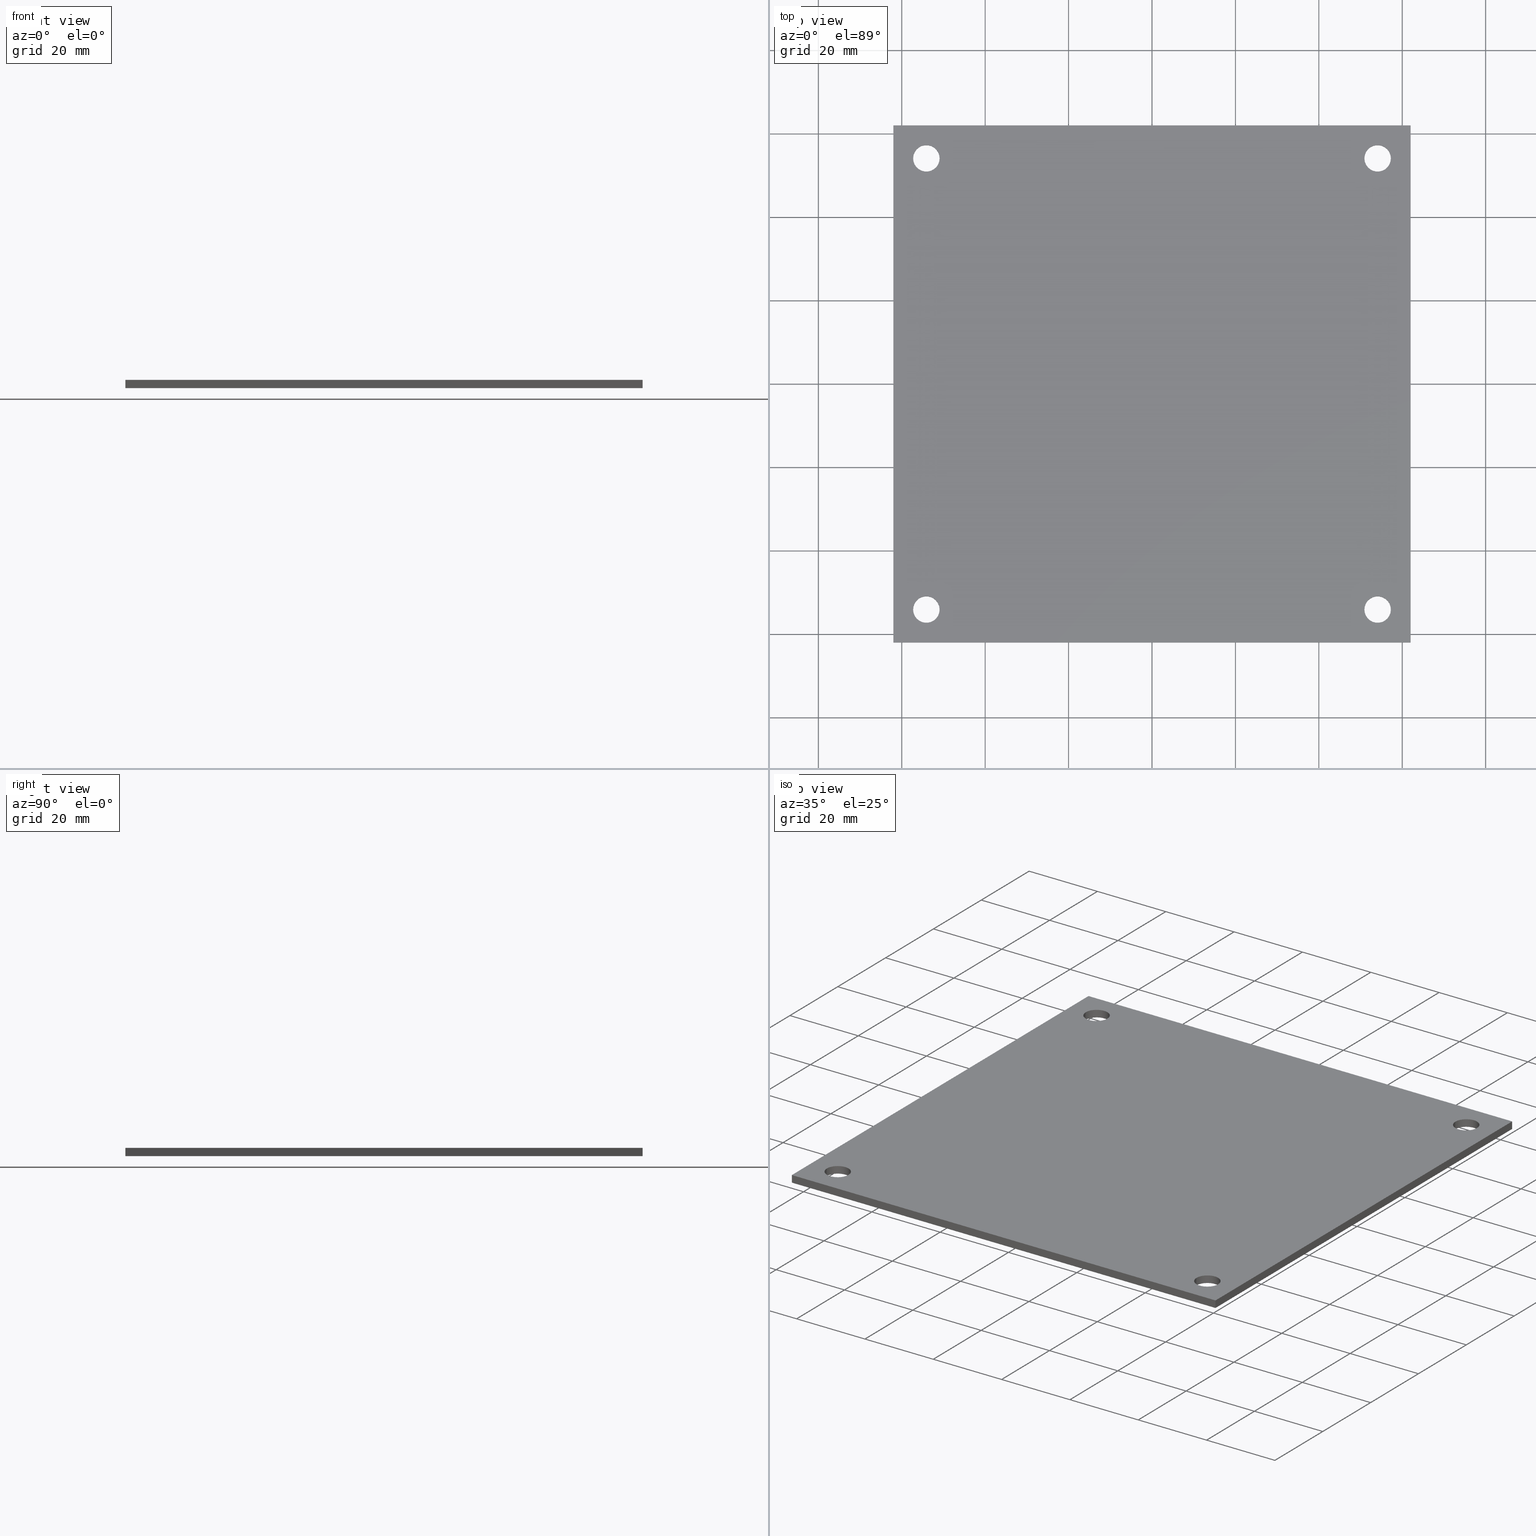
[diagram: canonical four-view strip — front | top / right | iso, engineering-drawing reading convention]
A machine part, canonical four-view strip (front | top / right | iso — engineering-drawing reading convention). The complete STEP part file that produces these views, byte-faithful:
ISO-10303-21;
HEADER;
FILE_DESCRIPTION (( 'STEP AP214' ),
    '1' );
FILE_NAME ('FIBOX_ABP66.STEP',
    '2010-03-08T07:47:10',
    ( 'KennethW' ),
    ( 'FIBOX' ),
    'SwSTEP 2.0',
    'SolidWorks 2009',
    '' );
FILE_SCHEMA (( 'AUTOMOTIVE_DESIGN' ));
ENDSEC;

DATA;
#1 = ORIENTED_EDGE ( 'NONE', *, *, #47, .T. ) ;
#2 = EDGE_LOOP ( 'NONE', ( #1, #31, #10, #39 ) ) ;
#3 = VERTEX_POINT ( 'NONE', #182 ) ;
#4 = VERTEX_POINT ( 'NONE', #175 ) ;
#5 = ORIENTED_EDGE ( 'NONE', *, *, #18, .F. ) ;
#6 = EDGE_CURVE ( 'NONE', #4, #12, #170, .T. ) ;
#7 = VERTEX_POINT ( 'NONE', #165 ) ;
#8 = VERTEX_POINT ( 'NONE', #164 ) ;
#9 = EDGE_CURVE ( 'NONE', #7, #14, #196, .T. ) ;
#10 = ORIENTED_EDGE ( 'NONE', *, *, #9, .F. ) ;
#11 = ORIENTED_EDGE ( 'NONE', *, *, #29, .T. ) ;
#12 = VERTEX_POINT ( 'NONE', #192 ) ;
#13 = EDGE_CURVE ( 'NONE', #61, #8, #190, .T. ) ;
#14 = VERTEX_POINT ( 'NONE', #198 ) ;
#15 = UNCERTAINTY_MEASURE_WITH_UNIT (LENGTH_MEASURE( 1.000000000000000100E-005 ), #366, 'distance_accuracy_value', 'NONE');
#16 =( NAMED_UNIT ( * ) SI_UNIT ( $, .STERADIAN. ) SOLID_ANGLE_UNIT ( ) );
#17 = ORIENTED_EDGE ( 'NONE', *, *, #13, .T. ) ;
#18 = EDGE_CURVE ( 'NONE', #61, #4, #204, .T. ) ;
#19 = VERTEX_POINT ( 'NONE', #220 ) ;
#20 = EDGE_CURVE ( 'NONE', #41, #7, #219, .T. ) ;
#21 = ADVANCED_FACE ( 'NONE', ( #240 ), #275, .F. ) ;
#22 = EDGE_LOOP ( 'NONE', ( #23, #49, #27, #46 ) ) ;
#23 = ORIENTED_EDGE ( 'NONE', *, *, #24, .T. ) ;
#24 = EDGE_CURVE ( 'NONE', #19, #3, #201, .T. ) ;
#25 = VERTEX_POINT ( 'NONE', #274 ) ;
#26 = EDGE_CURVE ( 'NONE', #3, #43, #280, .T. ) ;
#27 = ORIENTED_EDGE ( 'NONE', *, *, #28, .F. ) ;
#28 = EDGE_CURVE ( 'NONE', #59, #43, #276, .T. ) ;
#29 = EDGE_CURVE ( 'NONE', #8, #12, #217, .T. ) ;
#30 = ADVANCED_FACE ( 'NONE', ( #213 ), #269, .F. ) ;
#31 = ORIENTED_EDGE ( 'NONE', *, *, #32, .T. ) ;
#32 = EDGE_CURVE ( 'NONE', #25, #14, #263, .T. ) ;
#33 = MANIFOLD_SOLID_BREP ( 'NONE', #117 ) ;
#34 = ADVANCED_FACE ( 'NONE', ( #225 ), #224, .F. ) ;
#35 = EDGE_LOOP ( 'NONE', ( #36, #112, #109, #51 ) ) ;
#36 = ORIENTED_EDGE ( 'NONE', *, *, #37, .T. ) ;
#37 = EDGE_CURVE ( 'NONE', #38, #111, #223, .T. ) ;
#38 = VERTEX_POINT ( 'NONE', #252 ) ;
#39 = ORIENTED_EDGE ( 'NONE', *, *, #20, .F. ) ;
#40 = EDGE_LOOP ( 'NONE', ( #108, #78, #75, #84 ) ) ;
#41 = VERTEX_POINT ( 'NONE', #251 ) ;
#42 = EDGE_CURVE ( 'NONE', #19, #59, #250, .T. ) ;
#43 = VERTEX_POINT ( 'NONE', #246 ) ;
#44 = ORIENTED_EDGE ( 'NONE', *, *, #45, .F. ) ;
#45 = EDGE_CURVE ( 'NONE', #3, #19, #244, .T. ) ;
#46 = ORIENTED_EDGE ( 'NONE', *, *, #42, .F. ) ;
#47 = EDGE_CURVE ( 'NONE', #41, #25, #314, .T. ) ;
#48 = ORIENTED_EDGE ( 'NONE', *, *, #6, .F. ) ;
#49 = ORIENTED_EDGE ( 'NONE', *, *, #26, .T. ) ;
#50 = EDGE_CURVE ( 'NONE', #110, #114, #320, .T. ) ;
#51 = ORIENTED_EDGE ( 'NONE', *, *, #52, .F. ) ;
#52 = EDGE_CURVE ( 'NONE', #38, #110, #326, .T. ) ;
#53 = ADVANCED_FACE ( 'NONE', ( #324 ), #323, .F. ) ;
#54 = EDGE_LOOP ( 'NONE', ( #17, #11, #48, #5 ) ) ;
#55 = ORIENTED_EDGE ( 'NONE', *, *, #13, .F. ) ;
#56 = ORIENTED_EDGE ( 'NONE', *, *, #63, .F. ) ;
#57 = EDGE_LOOP ( 'NONE', ( #55, #56 ) ) ;
#58 = EDGE_LOOP ( 'NONE', ( #60, #44 ) ) ;
#59 = VERTEX_POINT ( 'NONE', #313 ) ;
#60 = ORIENTED_EDGE ( 'NONE', *, *, #24, .F. ) ;
#61 = VERTEX_POINT ( 'NONE', #312 ) ;
#62 = ADVANCED_FACE ( 'NONE', ( #311, #308, #307, #306, #305 ), #303, .T. ) ;
#63 = EDGE_CURVE ( 'NONE', #8, #61, #296, .T. ) ;
#64 = EDGE_LOOP ( 'NONE', ( #124, #145, #133, #136 ) ) ;
#65 = ORIENTED_EDGE ( 'NONE', *, *, #9, .T. ) ;
#66 = EDGE_LOOP ( 'NONE', ( #65, #132 ) ) ;
#67 = EDGE_CURVE ( 'NONE', #103, #107, #297, .T. ) ;
#68 = VERTEX_POINT ( 'NONE', #288 ) ;
#69 = ORIENTED_EDGE ( 'NONE', *, *, #70, .T. ) ;
#70 = EDGE_CURVE ( 'NONE', #43, #59, #287, .T. ) ;
#71 = VERTEX_POINT ( 'NONE', #282 ) ;
#72 = EDGE_CURVE ( 'NONE', #83, #77, #185, .T. ) ;
#73 = EDGE_CURVE ( 'NONE', #12, #4, #359, .T. ) ;
#74 = ORIENTED_EDGE ( 'NONE', *, *, #28, .T. ) ;
#75 = ORIENTED_EDGE ( 'NONE', *, *, #76, .T. ) ;
#76 = EDGE_CURVE ( 'NONE', #68, #71, #331, .T. ) ;
#77 = VERTEX_POINT ( 'NONE', #363 ) ;
#78 = ORIENTED_EDGE ( 'NONE', *, *, #93, .T. ) ;
#79 = EDGE_CURVE ( 'NONE', #25, #41, #333, .T. ) ;
#80 = ORIENTED_EDGE ( 'NONE', *, *, #47, .F. ) ;
#81 = ORIENTED_EDGE ( 'NONE', *, *, #79, .F. ) ;
#82 = EDGE_LOOP ( 'NONE', ( #80, #81 ) ) ;
#83 = VERTEX_POINT ( 'NONE', #338 ) ;
#84 = ORIENTED_EDGE ( 'NONE', *, *, #85, .T. ) ;
#85 = EDGE_CURVE ( 'NONE', #71, #83, #337, .T. ) ;
#86 = EDGE_LOOP ( 'NONE', ( #74, #69 ) ) ;
#87 = EDGE_LOOP ( 'NONE', ( #98, #99 ) ) ;
#88 = EDGE_LOOP ( 'NONE', ( #94, #95 ) ) ;
#89 = ORIENTED_EDGE ( 'NONE', *, *, #90, .F. ) ;
#90 = EDGE_CURVE ( 'NONE', #107, #106, #481, .T. ) ;
#91 = ORIENTED_EDGE ( 'NONE', *, *, #67, .F. ) ;
#92 = EDGE_LOOP ( 'NONE', ( #100, #104, #89, #91 ) ) ;
#93 = EDGE_CURVE ( 'NONE', #77, #68, #477, .T. ) ;
#94 = ORIENTED_EDGE ( 'NONE', *, *, #37, .F. ) ;
#95 = ORIENTED_EDGE ( 'NONE', *, *, #96, .F. ) ;
#96 = EDGE_CURVE ( 'NONE', #111, #38, #473, .T. ) ;
#97 = ADVANCED_FACE ( 'NONE', ( #468, #467, #466, #465, #464 ), #463, .F. ) ;
#98 = ORIENTED_EDGE ( 'NONE', *, *, #6, .T. ) ;
#99 = ORIENTED_EDGE ( 'NONE', *, *, #73, .T. ) ;
#100 = ORIENTED_EDGE ( 'NONE', *, *, #101, .F. ) ;
#101 = EDGE_CURVE ( 'NONE', #102, #103, #461, .T. ) ;
#102 = VERTEX_POINT ( 'NONE', #454 ) ;
#103 = VERTEX_POINT ( 'NONE', #453 ) ;
#104 = ORIENTED_EDGE ( 'NONE', *, *, #105, .F. ) ;
#105 = EDGE_CURVE ( 'NONE', #106, #102, #452, .T. ) ;
#106 = VERTEX_POINT ( 'NONE', #448 ) ;
#107 = VERTEX_POINT ( 'NONE', #358 ) ;
#108 = ORIENTED_EDGE ( 'NONE', *, *, #72, .T. ) ;
#109 = ORIENTED_EDGE ( 'NONE', *, *, #50, .F. ) ;
#110 = VERTEX_POINT ( 'NONE', #357 ) ;
#111 = VERTEX_POINT ( 'NONE', #356 ) ;
#112 = ORIENTED_EDGE ( 'NONE', *, *, #113, .T. ) ;
#113 = EDGE_CURVE ( 'NONE', #111, #114, #355, .T. ) ;
#114 = VERTEX_POINT ( 'NONE', #351 ) ;
#115 = ORIENTED_EDGE ( 'NONE', *, *, #52, .T. ) ;
#116 = ORIENTED_EDGE ( 'NONE', *, *, #134, .F. ) ;
#117 = CLOSED_SHELL ( 'NONE', ( #34, #53, #30, #21, #62, #97, #128, #135, #176, #156, #143, #171, #121, #181 ) ) ;
#118 = ORIENTED_EDGE ( 'NONE', *, *, #79, .T. ) ;
#119 = ORIENTED_EDGE ( 'NONE', *, *, #20, .T. ) ;
#120 = ORIENTED_EDGE ( 'NONE', *, *, #126, .F. ) ;
#121 = ADVANCED_FACE ( 'NONE', ( #350 ), #349, .F. ) ;
#122 = EDGE_LOOP ( 'NONE', ( #140, #147, #160, #178 ) ) ;
#123 = EDGE_CURVE ( 'NONE', #77, #103, #344, .T. ) ;
#124 = ORIENTED_EDGE ( 'NONE', *, *, #101, .T. ) ;
#125 = ORIENTED_EDGE ( 'NONE', *, *, #134, .T. ) ;
#126 = EDGE_CURVE ( 'NONE', #14, #7, #446, .T. ) ;
#127 = ORIENTED_EDGE ( 'NONE', *, *, #50, .T. ) ;
#128 = ADVANCED_FACE ( 'NONE', ( #441 ), #440, .F. ) ;
#129 = ORIENTED_EDGE ( 'NONE', *, *, #197, .F. ) ;
#130 = ORIENTED_EDGE ( 'NONE', *, *, #67, .T. ) ;
#131 = EDGE_LOOP ( 'NONE', ( #130, #129, #173, #180 ) ) ;
#132 = ORIENTED_EDGE ( 'NONE', *, *, #126, .T. ) ;
#133 = ORIENTED_EDGE ( 'NONE', *, *, #72, .F. ) ;
#134 = EDGE_CURVE ( 'NONE', #114, #110, #438, .T. ) ;
#135 = ADVANCED_FACE ( 'NONE', ( #430 ), #429, .F. ) ;
#136 = ORIENTED_EDGE ( 'NONE', *, *, #172, .T. ) ;
#137 = ORIENTED_EDGE ( 'NONE', *, *, #172, .F. ) ;
#138 = ORIENTED_EDGE ( 'NONE', *, *, #85, .F. ) ;
#139 = ORIENTED_EDGE ( 'NONE', *, *, #153, .T. ) ;
#140 = ORIENTED_EDGE ( 'NONE', *, *, #29, .F. ) ;
#141 = ORIENTED_EDGE ( 'NONE', *, *, #26, .F. ) ;
#142 = ORIENTED_EDGE ( 'NONE', *, *, #45, .T. ) ;
#143 = ADVANCED_FACE ( 'NONE', ( #427 ), #423, .F. ) ;
#144 = ORIENTED_EDGE ( 'NONE', *, *, #42, .T. ) ;
#145 = ORIENTED_EDGE ( 'NONE', *, *, #123, .F. ) ;
#146 = EDGE_LOOP ( 'NONE', ( #141, #142, #144, #174 ) ) ;
#147 = ORIENTED_EDGE ( 'NONE', *, *, #63, .T. ) ;
#148 = ORIENTED_EDGE ( 'NONE', *, *, #96, .T. ) ;
#149 = DIRECTION ( 'NONE',  ( 1.000000000000000000, 0.0000000000000000000, 0.0000000000000000000 ) ) ;
#150 = EDGE_LOOP ( 'NONE', ( #151, #152, #154, #155 ) ) ;
#151 = ORIENTED_EDGE ( 'NONE', *, *, #90, .T. ) ;
#152 = ORIENTED_EDGE ( 'NONE', *, *, #153, .F. ) ;
#153 = EDGE_CURVE ( 'NONE', #71, #106, #418, .T. ) ;
#154 = ORIENTED_EDGE ( 'NONE', *, *, #76, .F. ) ;
#155 = ORIENTED_EDGE ( 'NONE', *, *, #197, .T. ) ;
#156 = ADVANCED_FACE ( 'NONE', ( #414 ), #413, .F. ) ;
#157 = EDGE_LOOP ( 'NONE', ( #158, #137, #138, #139 ) ) ;
#158 = ORIENTED_EDGE ( 'NONE', *, *, #105, .T. ) ;
#159 = EDGE_LOOP ( 'NONE', ( #161, #148, #115, #116 ) ) ;
#160 = ORIENTED_EDGE ( 'NONE', *, *, #18, .T. ) ;
#161 = ORIENTED_EDGE ( 'NONE', *, *, #113, .F. ) ;
#162 = ORIENTED_EDGE ( 'NONE', *, *, #32, .F. ) ;
#163 = CARTESIAN_POINT ( 'NONE',  ( -54.09999999999999400, 54.10000000000000900, 0.0000000000000000000 ) ) ;
#164 = CARTESIAN_POINT ( 'NONE',  ( -50.92499999999999700, -54.10000000000000900, 2.000000000000000000 ) ) ;
#165 = CARTESIAN_POINT ( 'NONE',  ( -57.27499999999999100, 54.10000000000000900, 0.0000000000000000000 ) ) ;
#166 = DIRECTION ( 'NONE',  ( 1.000000000000000000, 0.0000000000000000000, 0.0000000000000000000 ) ) ;
#167 = DIRECTION ( 'NONE',  ( 0.0000000000000000000, 0.0000000000000000000, 1.000000000000000000 ) ) ;
#168 = CARTESIAN_POINT ( 'NONE',  ( -54.09999999999999400, -54.10000000000000900, 0.0000000000000000000 ) ) ;
#169 = AXIS2_PLACEMENT_3D ( 'NONE', #168, #167, #166 ) ;
#170 = CIRCLE ( 'NONE', #169, 3.174999999999997200 ) ;
#171 = ADVANCED_FACE ( 'NONE', ( #408 ), #407, .F. ) ;
#172 = EDGE_CURVE ( 'NONE', #83, #102, #402, .T. ) ;
#173 = ORIENTED_EDGE ( 'NONE', *, *, #93, .F. ) ;
#174 = ORIENTED_EDGE ( 'NONE', *, *, #70, .F. ) ;
#175 = CARTESIAN_POINT ( 'NONE',  ( -57.27499999999999100, -54.10000000000000900, 0.0000000000000000000 ) ) ;
#176 = ADVANCED_FACE ( 'NONE', ( #398 ), #397, .F. ) ;
#177 = EDGE_LOOP ( 'NONE', ( #162, #118, #119, #120 ) ) ;
#178 = ORIENTED_EDGE ( 'NONE', *, *, #73, .F. ) ;
#179 = EDGE_LOOP ( 'NONE', ( #127, #125 ) ) ;
#180 = ORIENTED_EDGE ( 'NONE', *, *, #123, .T. ) ;
#181 = ADVANCED_FACE ( 'NONE', ( #392 ), #391, .F. ) ;
#182 = CARTESIAN_POINT ( 'NONE',  ( 57.27500000000000600, 54.10000000000000900, 2.000000000000000000 ) ) ;
#183 = DIRECTION ( 'NONE',  ( -1.119176436114069100E-016, -1.000000000000000000, 0.0000000000000000000 ) ) ;
#184 = CARTESIAN_POINT ( 'NONE',  ( -61.99999999999999300, 62.00000000000000700, 2.000000000000000000 ) ) ;
#185 = LINE ( 'NONE', #184, #245 ) ;
#186 = DIRECTION ( 'NONE',  ( 1.000000000000000000, 0.0000000000000000000, 0.0000000000000000000 ) ) ;
#187 = DIRECTION ( 'NONE',  ( 0.0000000000000000000, 0.0000000000000000000, 1.000000000000000000 ) ) ;
#188 = CARTESIAN_POINT ( 'NONE',  ( -54.09999999999999400, -54.10000000000000900, 2.000000000000000000 ) ) ;
#189 = AXIS2_PLACEMENT_3D ( 'NONE', #188, #187, #186 ) ;
#190 = CIRCLE ( 'NONE', #189, 3.174999999999997200 ) ;
#191 =( GEOMETRIC_REPRESENTATION_CONTEXT ( 3 ) GLOBAL_UNCERTAINTY_ASSIGNED_CONTEXT ( ( #15 ) ) GLOBAL_UNIT_ASSIGNED_CONTEXT ( ( #366, #365, #16 ) ) REPRESENTATION_CONTEXT ( 'NONE', 'WORKASPACE' ) );
#192 = CARTESIAN_POINT ( 'NONE',  ( -50.92499999999999700, -54.10000000000000900, 0.0000000000000000000 ) ) ;
#193 = DIRECTION ( 'NONE',  ( 1.000000000000000000, 0.0000000000000000000, 0.0000000000000000000 ) ) ;
#194 = DIRECTION ( 'NONE',  ( 0.0000000000000000000, 0.0000000000000000000, 1.000000000000000000 ) ) ;
#195 = AXIS2_PLACEMENT_3D ( 'NONE', #163, #194, #193 ) ;
#196 = CIRCLE ( 'NONE', #195, 3.174999999999997200 ) ;
#197 = EDGE_CURVE ( 'NONE', #68, #107, #386, .T. ) ;
#198 = CARTESIAN_POINT ( 'NONE',  ( -50.92499999999999700, 54.10000000000000900, 0.0000000000000000000 ) ) ;
#199 = AXIS2_PLACEMENT_3D ( 'NONE', #205, #203, #202 ) ;
#200 = DIRECTION ( 'NONE',  ( -0.0000000000000000000, -0.0000000000000000000, -1.000000000000000000 ) ) ;
#201 = CIRCLE ( 'NONE', #273, 3.174999999999997200 ) ;
#202 = DIRECTION ( 'NONE',  ( -1.000000000000000000, 0.0000000000000000000, 0.0000000000000000000 ) ) ;
#203 = DIRECTION ( 'NONE',  ( -0.0000000000000000000, -0.0000000000000000000, -1.000000000000000000 ) ) ;
#204 = LINE ( 'NONE', #221, #211 ) ;
#205 = CARTESIAN_POINT ( 'NONE',  ( 54.10000000000000900, 54.10000000000000900, 2.000000000000000000 ) ) ;
#206 = DIRECTION ( 'NONE',  ( 1.000000000000000000, 0.0000000000000000000, 0.0000000000000000000 ) ) ;
#207 = DIRECTION ( 'NONE',  ( 0.0000000000000000000, 0.0000000000000000000, 1.000000000000000000 ) ) ;
#208 = CARTESIAN_POINT ( 'NONE',  ( 54.10000000000000900, 54.10000000000000900, 0.0000000000000000000 ) ) ;
#209 = AXIS2_PLACEMENT_3D ( 'NONE', #208, #207, #206 ) ;
#210 = VECTOR ( 'NONE', #212, 1000.000000000000000 ) ;
#211 = VECTOR ( 'NONE', #200, 1000.000000000000000 ) ;
#212 = DIRECTION ( 'NONE',  ( -0.0000000000000000000, -0.0000000000000000000, -1.000000000000000000 ) ) ;
#213 = FACE_OUTER_BOUND ( 'NONE', #2, .T. ) ;
#214 = DIRECTION ( 'NONE',  ( -0.0000000000000000000, -0.0000000000000000000, -1.000000000000000000 ) ) ;
#215 = VECTOR ( 'NONE', #214, 1000.000000000000000 ) ;
#216 = CARTESIAN_POINT ( 'NONE',  ( -50.92499999999999700, -54.10000000000000900, 2.000000000000000000 ) ) ;
#217 = LINE ( 'NONE', #216, #215 ) ;
#218 = CARTESIAN_POINT ( 'NONE',  ( -57.27499999999999100, 54.10000000000000900, 2.000000000000000000 ) ) ;
#219 = LINE ( 'NONE', #218, #210 ) ;
#220 = CARTESIAN_POINT ( 'NONE',  ( 50.92500000000001100, 54.10000000000000900, 2.000000000000000000 ) ) ;
#221 = CARTESIAN_POINT ( 'NONE',  ( -57.27499999999999100, -54.10000000000000900, 2.000000000000000000 ) ) ;
#222 = AXIS2_PLACEMENT_3D ( 'NONE', #259, #258, #257 ) ;
#223 = CIRCLE ( 'NONE', #256, 3.174999999999997200 ) ;
#224 = CYLINDRICAL_SURFACE ( 'NONE', #222, 3.174999999999997200 ) ;
#225 = FACE_OUTER_BOUND ( 'NONE', #35, .T. ) ;
#226 =( GEOMETRIC_REPRESENTATION_CONTEXT ( 3 ) GLOBAL_UNCERTAINTY_ASSIGNED_CONTEXT ( ( #227 ) ) GLOBAL_UNIT_ASSIGNED_CONTEXT ( ( #230, #229, #228 ) ) REPRESENTATION_CONTEXT ( 'NONE', 'WORKASPACE' ) );
#227 = UNCERTAINTY_MEASURE_WITH_UNIT (LENGTH_MEASURE( 1.000000000000000100E-005 ), #230, 'distance_accuracy_value', 'NONE');
#228 =( NAMED_UNIT ( * ) SI_UNIT ( $, .STERADIAN. ) SOLID_ANGLE_UNIT ( ) );
#229 =( NAMED_UNIT ( * ) PLANE_ANGLE_UNIT ( ) SI_UNIT ( $, .RADIAN. ) );
#230 =( LENGTH_UNIT ( ) NAMED_UNIT ( * ) SI_UNIT ( .MILLI., .METRE. ) );
#231 = MECHANICAL_DESIGN_GEOMETRIC_PRESENTATION_REPRESENTATION (  '', ( #233 ), #226 ) ;
#232 = PRESENTATION_LAYER_ASSIGNMENT (  '', '', ( #233 ) ) ;
#233 = STYLED_ITEM ( 'NONE', ( #234 ), #33 ) ;
#234 = PRESENTATION_STYLE_ASSIGNMENT (( #235 ) ) ;
#235 = SURFACE_STYLE_USAGE ( .BOTH. , #236 ) ;
#236 = SURFACE_SIDE_STYLE ('',( #237 ) ) ;
#237 = SURFACE_STYLE_FILL_AREA ( #238 ) ;
#238 = FILL_AREA_STYLE ('',( #264 ) ) ;
#239 = COLOUR_RGB ( '',0.7529411764705882200, 0.7529411764705882200, 0.7529411764705882200 ) ;
#240 = FACE_OUTER_BOUND ( 'NONE', #22, .T. ) ;
#241 = DIRECTION ( 'NONE',  ( 0.0000000000000000000, 0.0000000000000000000, 1.000000000000000000 ) ) ;
#242 = CARTESIAN_POINT ( 'NONE',  ( 54.10000000000000900, 54.10000000000000900, 2.000000000000000000 ) ) ;
#243 = AXIS2_PLACEMENT_3D ( 'NONE', #242, #241, #149 ) ;
#244 = CIRCLE ( 'NONE', #243, 3.174999999999997200 ) ;
#245 = VECTOR ( 'NONE', #183, 1000.000000000000000 ) ;
#246 = CARTESIAN_POINT ( 'NONE',  ( 57.27500000000000600, 54.10000000000000900, 0.0000000000000000000 ) ) ;
#247 = DIRECTION ( 'NONE',  ( -0.0000000000000000000, -0.0000000000000000000, -1.000000000000000000 ) ) ;
#248 = VECTOR ( 'NONE', #247, 1000.000000000000000 ) ;
#249 = CARTESIAN_POINT ( 'NONE',  ( 50.92500000000001100, 54.10000000000000900, 2.000000000000000000 ) ) ;
#250 = LINE ( 'NONE', #249, #248 ) ;
#251 = CARTESIAN_POINT ( 'NONE',  ( -57.27499999999999100, 54.10000000000000900, 2.000000000000000000 ) ) ;
#252 = CARTESIAN_POINT ( 'NONE',  ( 50.92500000000001800, -54.10000000000000900, 2.000000000000000000 ) ) ;
#253 = DIRECTION ( 'NONE',  ( 1.000000000000000000, 0.0000000000000000000, 0.0000000000000000000 ) ) ;
#254 = DIRECTION ( 'NONE',  ( 0.0000000000000000000, 0.0000000000000000000, 1.000000000000000000 ) ) ;
#255 = CARTESIAN_POINT ( 'NONE',  ( 54.10000000000001600, -54.10000000000000900, 2.000000000000000000 ) ) ;
#256 = AXIS2_PLACEMENT_3D ( 'NONE', #255, #254, #253 ) ;
#257 = DIRECTION ( 'NONE',  ( -1.000000000000000000, 0.0000000000000000000, 0.0000000000000000000 ) ) ;
#258 = DIRECTION ( 'NONE',  ( -0.0000000000000000000, -0.0000000000000000000, -1.000000000000000000 ) ) ;
#259 = CARTESIAN_POINT ( 'NONE',  ( 54.10000000000001600, -54.10000000000000900, 2.000000000000000000 ) ) ;
#260 = DIRECTION ( 'NONE',  ( -0.0000000000000000000, -0.0000000000000000000, -1.000000000000000000 ) ) ;
#261 = VECTOR ( 'NONE', #260, 1000.000000000000000 ) ;
#262 = CARTESIAN_POINT ( 'NONE',  ( -50.92499999999999700, 54.10000000000000900, 2.000000000000000000 ) ) ;
#263 = LINE ( 'NONE', #262, #261 ) ;
#264 = FILL_AREA_STYLE_COLOUR ( '', #239 ) ;
#265 = DIRECTION ( 'NONE',  ( -1.000000000000000000, 0.0000000000000000000, 0.0000000000000000000 ) ) ;
#266 = DIRECTION ( 'NONE',  ( -0.0000000000000000000, -0.0000000000000000000, -1.000000000000000000 ) ) ;
#267 = CARTESIAN_POINT ( 'NONE',  ( -54.09999999999999400, 54.10000000000000900, 2.000000000000000000 ) ) ;
#268 = AXIS2_PLACEMENT_3D ( 'NONE', #267, #266, #265 ) ;
#269 = CYLINDRICAL_SURFACE ( 'NONE', #268, 3.174999999999997200 ) ;
#270 = DIRECTION ( 'NONE',  ( 1.000000000000000000, 0.0000000000000000000, 0.0000000000000000000 ) ) ;
#271 = DIRECTION ( 'NONE',  ( 0.0000000000000000000, 0.0000000000000000000, 1.000000000000000000 ) ) ;
#272 = CARTESIAN_POINT ( 'NONE',  ( 54.10000000000000900, 54.10000000000000900, 2.000000000000000000 ) ) ;
#273 = AXIS2_PLACEMENT_3D ( 'NONE', #272, #271, #270 ) ;
#274 = CARTESIAN_POINT ( 'NONE',  ( -50.92499999999999700, 54.10000000000000900, 2.000000000000000000 ) ) ;
#275 = CYLINDRICAL_SURFACE ( 'NONE', #199, 3.174999999999997200 ) ;
#276 = CIRCLE ( 'NONE', #209, 3.174999999999997200 ) ;
#277 = DIRECTION ( 'NONE',  ( -0.0000000000000000000, -0.0000000000000000000, -1.000000000000000000 ) ) ;
#278 = VECTOR ( 'NONE', #277, 1000.000000000000000 ) ;
#279 = CARTESIAN_POINT ( 'NONE',  ( 57.27500000000000600, 54.10000000000000900, 2.000000000000000000 ) ) ;
#280 = LINE ( 'NONE', #279, #278 ) ;
#281 = CARTESIAN_POINT ( 'NONE',  ( 50.92500000000001800, -54.10000000000000900, 2.000000000000000000 ) ) ;
#282 = CARTESIAN_POINT ( 'NONE',  ( 62.00000000000000000, 62.00000000000000000, 2.000000000000000000 ) ) ;
#283 = DIRECTION ( 'NONE',  ( 1.000000000000000000, 0.0000000000000000000, 0.0000000000000000000 ) ) ;
#284 = DIRECTION ( 'NONE',  ( 0.0000000000000000000, 0.0000000000000000000, 1.000000000000000000 ) ) ;
#285 = CARTESIAN_POINT ( 'NONE',  ( 54.10000000000000900, 54.10000000000000900, 0.0000000000000000000 ) ) ;
#286 = AXIS2_PLACEMENT_3D ( 'NONE', #285, #284, #283 ) ;
#287 = CIRCLE ( 'NONE', #286, 3.174999999999997200 ) ;
#288 = CARTESIAN_POINT ( 'NONE',  ( 62.00000000000000700, -61.99999999999999300, 2.000000000000000000 ) ) ;
#289 = DIRECTION ( 'NONE',  ( 1.000000000000000000, 0.0000000000000000000, 0.0000000000000000000 ) ) ;
#290 = VECTOR ( 'NONE', #289, 1000.000000000000000 ) ;
#291 = CARTESIAN_POINT ( 'NONE',  ( -62.00000000000000700, -61.99999999999999300, 0.0000000000000000000 ) ) ;
#292 = DIRECTION ( 'NONE',  ( 1.000000000000000000, 0.0000000000000000000, 0.0000000000000000000 ) ) ;
#293 = DIRECTION ( 'NONE',  ( 1.000000000000000000, 0.0000000000000000000, 0.0000000000000000000 ) ) ;
#294 = DIRECTION ( 'NONE',  ( 0.0000000000000000000, 0.0000000000000000000, 1.000000000000000000 ) ) ;
#295 = AXIS2_PLACEMENT_3D ( 'NONE', #301, #294, #293 ) ;
#296 = CIRCLE ( 'NONE', #295, 3.174999999999997200 ) ;
#297 = LINE ( 'NONE', #291, #290 ) ;
#298 = DIRECTION ( 'NONE',  ( 1.000000000000000000, 0.0000000000000000000, -0.0000000000000000000 ) ) ;
#299 = DIRECTION ( 'NONE',  ( 0.0000000000000000000, 0.0000000000000000000, 1.000000000000000000 ) ) ;
#300 = CARTESIAN_POINT ( 'NONE',  ( -61.99999999999999300, 62.00000000000000700, 2.000000000000000000 ) ) ;
#301 = CARTESIAN_POINT ( 'NONE',  ( -54.09999999999999400, -54.10000000000000900, 2.000000000000000000 ) ) ;
#302 = AXIS2_PLACEMENT_3D ( 'NONE', #300, #299, #298 ) ;
#303 = PLANE ( 'NONE',  #302 ) ;
#304 = CARTESIAN_POINT ( 'NONE',  ( -54.09999999999999400, 54.10000000000000900, 2.000000000000000000 ) ) ;
#305 = FACE_BOUND ( 'NONE', #88, .T. ) ;
#306 = FACE_BOUND ( 'NONE', #82, .T. ) ;
#307 = FACE_OUTER_BOUND ( 'NONE', #40, .T. ) ;
#308 = FACE_BOUND ( 'NONE', #58, .T. ) ;
#309 = DIRECTION ( 'NONE',  ( -1.000000000000000000, 0.0000000000000000000, 0.0000000000000000000 ) ) ;
#310 = AXIS2_PLACEMENT_3D ( 'NONE', #322, #321, #309 ) ;
#311 = FACE_BOUND ( 'NONE', #57, .T. ) ;
#312 = CARTESIAN_POINT ( 'NONE',  ( -57.27499999999999100, -54.10000000000000900, 2.000000000000000000 ) ) ;
#313 = CARTESIAN_POINT ( 'NONE',  ( 50.92500000000001100, 54.10000000000000900, 0.0000000000000000000 ) ) ;
#314 = CIRCLE ( 'NONE', #318, 3.174999999999997200 ) ;
#315 = DIRECTION ( 'NONE',  ( 0.0000000000000000000, 0.0000000000000000000, 1.000000000000000000 ) ) ;
#316 = DIRECTION ( 'NONE',  ( 1.000000000000000000, 0.0000000000000000000, 0.0000000000000000000 ) ) ;
#317 = DIRECTION ( 'NONE',  ( -0.0000000000000000000, -0.0000000000000000000, -1.000000000000000000 ) ) ;
#318 = AXIS2_PLACEMENT_3D ( 'NONE', #304, #328, #292 ) ;
#319 = AXIS2_PLACEMENT_3D ( 'NONE', #327, #315, #316 ) ;
#320 = CIRCLE ( 'NONE', #319, 3.174999999999997200 ) ;
#321 = DIRECTION ( 'NONE',  ( -0.0000000000000000000, -0.0000000000000000000, -1.000000000000000000 ) ) ;
#322 = CARTESIAN_POINT ( 'NONE',  ( -54.09999999999999400, -54.10000000000000900, 2.000000000000000000 ) ) ;
#323 = CYLINDRICAL_SURFACE ( 'NONE', #310, 3.174999999999997200 ) ;
#324 = FACE_OUTER_BOUND ( 'NONE', #54, .T. ) ;
#325 = VECTOR ( 'NONE', #317, 1000.000000000000000 ) ;
#326 = LINE ( 'NONE', #281, #325 ) ;
#327 = CARTESIAN_POINT ( 'NONE',  ( 54.10000000000001600, -54.10000000000000900, 0.0000000000000000000 ) ) ;
#328 = DIRECTION ( 'NONE',  ( 0.0000000000000000000, 0.0000000000000000000, 1.000000000000000000 ) ) ;
#329 = VECTOR ( 'NONE', #364, 1000.000000000000000 ) ;
#330 = CARTESIAN_POINT ( 'NONE',  ( 62.00000000000000000, 62.00000000000000000, 2.000000000000000000 ) ) ;
#331 = LINE ( 'NONE', #330, #329 ) ;
#332 = AXIS2_PLACEMENT_3D ( 'NONE', #341, #340, #339 ) ;
#333 = CIRCLE ( 'NONE', #332, 3.174999999999997200 ) ;
#334 = DIRECTION ( 'NONE',  ( 0.0000000000000000000, 0.0000000000000000000, 1.000000000000000000 ) ) ;
#335 = VECTOR ( 'NONE', #482, 1000.000000000000000 ) ;
#336 = CARTESIAN_POINT ( 'NONE',  ( -61.99999999999999300, 62.00000000000000700, 2.000000000000000000 ) ) ;
#337 = LINE ( 'NONE', #336, #335 ) ;
#338 = CARTESIAN_POINT ( 'NONE',  ( -61.99999999999999300, 62.00000000000000700, 2.000000000000000000 ) ) ;
#339 = DIRECTION ( 'NONE',  ( 1.000000000000000000, 0.0000000000000000000, 0.0000000000000000000 ) ) ;
#340 = DIRECTION ( 'NONE',  ( 0.0000000000000000000, 0.0000000000000000000, 1.000000000000000000 ) ) ;
#341 = CARTESIAN_POINT ( 'NONE',  ( -54.09999999999999400, 54.10000000000000900, 2.000000000000000000 ) ) ;
#342 = VECTOR ( 'NONE', #447, 1000.000000000000000 ) ;
#343 = CARTESIAN_POINT ( 'NONE',  ( -62.00000000000000700, -61.99999999999999300, 2.000000000000000000 ) ) ;
#344 = LINE ( 'NONE', #343, #342 ) ;
#345 = DIRECTION ( 'NONE',  ( -1.000000000000000000, 0.0000000000000000000, 0.0000000000000000000 ) ) ;
#346 = DIRECTION ( 'NONE',  ( -0.0000000000000000000, -0.0000000000000000000, -1.000000000000000000 ) ) ;
#347 = CARTESIAN_POINT ( 'NONE',  ( -54.09999999999999400, -54.10000000000000900, 2.000000000000000000 ) ) ;
#348 = AXIS2_PLACEMENT_3D ( 'NONE', #347, #346, #345 ) ;
#349 = CYLINDRICAL_SURFACE ( 'NONE', #348, 3.174999999999997200 ) ;
#350 = FACE_OUTER_BOUND ( 'NONE', #122, .T. ) ;
#351 = CARTESIAN_POINT ( 'NONE',  ( 57.27500000000001300, -54.10000000000000900, 0.0000000000000000000 ) ) ;
#352 = DIRECTION ( 'NONE',  ( -0.0000000000000000000, -0.0000000000000000000, -1.000000000000000000 ) ) ;
#353 = VECTOR ( 'NONE', #352, 1000.000000000000000 ) ;
#354 = CARTESIAN_POINT ( 'NONE',  ( 57.27500000000001300, -54.10000000000000900, 2.000000000000000000 ) ) ;
#355 = LINE ( 'NONE', #354, #353 ) ;
#356 = CARTESIAN_POINT ( 'NONE',  ( 57.27500000000001300, -54.10000000000000900, 2.000000000000000000 ) ) ;
#357 = CARTESIAN_POINT ( 'NONE',  ( 50.92500000000001800, -54.10000000000000900, 0.0000000000000000000 ) ) ;
#358 = CARTESIAN_POINT ( 'NONE',  ( 62.00000000000000700, -61.99999999999999300, 0.0000000000000000000 ) ) ;
#359 = CIRCLE ( 'NONE', #362, 3.174999999999997200 ) ;
#360 = DIRECTION ( 'NONE',  ( 1.000000000000000000, 0.0000000000000000000, 0.0000000000000000000 ) ) ;
#361 = CARTESIAN_POINT ( 'NONE',  ( -54.09999999999999400, -54.10000000000000900, 0.0000000000000000000 ) ) ;
#362 = AXIS2_PLACEMENT_3D ( 'NONE', #361, #334, #360 ) ;
#363 = CARTESIAN_POINT ( 'NONE',  ( -62.00000000000000700, -61.99999999999999300, 2.000000000000000000 ) ) ;
#364 = DIRECTION ( 'NONE',  ( -5.595882180570345400E-017, 1.000000000000000000, -0.0000000000000000000 ) ) ;
#365 =( NAMED_UNIT ( * ) PLANE_ANGLE_UNIT ( ) SI_UNIT ( $, .RADIAN. ) );
#366 =( LENGTH_UNIT ( ) NAMED_UNIT ( * ) SI_UNIT ( .MILLI., .METRE. ) );
#367 = MECHANICAL_DESIGN_GEOMETRIC_PRESENTATION_REPRESENTATION (  '', ( #369 ), #191 ) ;
#368 = PRESENTATION_LAYER_ASSIGNMENT (  '', '', ( #369 ) ) ;
#369 = STYLED_ITEM ( 'NONE', ( #370 ), #377 ) ;
#370 = PRESENTATION_STYLE_ASSIGNMENT (( #371 ) ) ;
#371 = SURFACE_STYLE_USAGE ( .BOTH. , #372 ) ;
#372 = SURFACE_SIDE_STYLE ('',( #373 ) ) ;
#373 = SURFACE_STYLE_FILL_AREA ( #374 ) ;
#374 = FILL_AREA_STYLE ('',( #375 ) ) ;
#375 = FILL_AREA_STYLE_COLOUR ( '', #376 ) ;
#376 = COLOUR_RGB ( '',0.7529411764705882200, 0.7529411764705882200, 0.7529411764705882200 ) ;
#377 = ADVANCED_BREP_SHAPE_REPRESENTATION ( 'FIBOX_ABP66', ( #33, #483 ), #378 ) ;
#378 =( GEOMETRIC_REPRESENTATION_CONTEXT ( 3 ) GLOBAL_UNCERTAINTY_ASSIGNED_CONTEXT ( ( #379 ) ) GLOBAL_UNIT_ASSIGNED_CONTEXT ( ( #382, #381, #380 ) ) REPRESENTATION_CONTEXT ( 'NONE', 'WORKASPACE' ) );
#379 = UNCERTAINTY_MEASURE_WITH_UNIT (LENGTH_MEASURE( 1.000000000000000100E-005 ), #382, 'distance_accuracy_value', 'NONE');
#380 =( NAMED_UNIT ( * ) SI_UNIT ( $, .STERADIAN. ) SOLID_ANGLE_UNIT ( ) );
#381 =( NAMED_UNIT ( * ) PLANE_ANGLE_UNIT ( ) SI_UNIT ( $, .RADIAN. ) );
#382 =( LENGTH_UNIT ( ) NAMED_UNIT ( * ) SI_UNIT ( .MILLI., .METRE. ) );
#383 = DIRECTION ( 'NONE',  ( -0.0000000000000000000, -0.0000000000000000000, -1.000000000000000000 ) ) ;
#384 = VECTOR ( 'NONE', #383, 1000.000000000000000 ) ;
#385 = CARTESIAN_POINT ( 'NONE',  ( 62.00000000000000700, -61.99999999999999300, 2.000000000000000000 ) ) ;
#386 = LINE ( 'NONE', #385, #384 ) ;
#387 = DIRECTION ( 'NONE',  ( -1.000000000000000000, 0.0000000000000000000, 0.0000000000000000000 ) ) ;
#388 = DIRECTION ( 'NONE',  ( -0.0000000000000000000, -0.0000000000000000000, -1.000000000000000000 ) ) ;
#389 = AXIS2_PLACEMENT_3D ( 'NONE', #390, #388, #387 ) ;
#390 = CARTESIAN_POINT ( 'NONE',  ( 54.10000000000001600, -54.10000000000000900, 2.000000000000000000 ) ) ;
#391 = CYLINDRICAL_SURFACE ( 'NONE', #389, 3.174999999999997200 ) ;
#392 = FACE_OUTER_BOUND ( 'NONE', #159, .T. ) ;
#393 = DIRECTION ( 'NONE',  ( 5.595882180570345400E-017, -1.000000000000000000, 0.0000000000000000000 ) ) ;
#394 = DIRECTION ( 'NONE',  ( -1.000000000000000000, -5.595882180570345400E-017, 0.0000000000000000000 ) ) ;
#395 = CARTESIAN_POINT ( 'NONE',  ( 62.00000000000000000, 62.00000000000000000, 2.000000000000000000 ) ) ;
#396 = AXIS2_PLACEMENT_3D ( 'NONE', #395, #394, #393 ) ;
#397 = PLANE ( 'NONE',  #396 ) ;
#398 = FACE_OUTER_BOUND ( 'NONE', #150, .T. ) ;
#399 = DIRECTION ( 'NONE',  ( -0.0000000000000000000, -0.0000000000000000000, -1.000000000000000000 ) ) ;
#400 = VECTOR ( 'NONE', #399, 1000.000000000000000 ) ;
#401 = CARTESIAN_POINT ( 'NONE',  ( -61.99999999999999300, 62.00000000000000700, 2.000000000000000000 ) ) ;
#402 = LINE ( 'NONE', #401, #400 ) ;
#403 = DIRECTION ( 'NONE',  ( -1.000000000000000000, 0.0000000000000000000, 0.0000000000000000000 ) ) ;
#404 = DIRECTION ( 'NONE',  ( -0.0000000000000000000, -0.0000000000000000000, -1.000000000000000000 ) ) ;
#405 = AXIS2_PLACEMENT_3D ( 'NONE', #406, #404, #403 ) ;
#406 = CARTESIAN_POINT ( 'NONE',  ( -54.09999999999999400, 54.10000000000000900, 2.000000000000000000 ) ) ;
#407 = CYLINDRICAL_SURFACE ( 'NONE', #405, 3.174999999999997200 ) ;
#408 = FACE_OUTER_BOUND ( 'NONE', #177, .T. ) ;
#409 = DIRECTION ( 'NONE',  ( 1.000000000000000000, -5.595882180570345400E-017, 0.0000000000000000000 ) ) ;
#410 = DIRECTION ( 'NONE',  ( -5.595882180570345400E-017, -1.000000000000000000, 0.0000000000000000000 ) ) ;
#411 = CARTESIAN_POINT ( 'NONE',  ( -61.99999999999999300, 62.00000000000000700, 2.000000000000000000 ) ) ;
#412 = AXIS2_PLACEMENT_3D ( 'NONE', #411, #410, #409 ) ;
#413 = PLANE ( 'NONE',  #412 ) ;
#414 = FACE_OUTER_BOUND ( 'NONE', #157, .T. ) ;
#415 = VECTOR ( 'NONE', #416, 1000.000000000000000 ) ;
#416 = DIRECTION ( 'NONE',  ( -0.0000000000000000000, -0.0000000000000000000, -1.000000000000000000 ) ) ;
#417 = CARTESIAN_POINT ( 'NONE',  ( 62.00000000000000000, 62.00000000000000000, 2.000000000000000000 ) ) ;
#418 = LINE ( 'NONE', #417, #415 ) ;
#419 = DIRECTION ( 'NONE',  ( -1.000000000000000000, 0.0000000000000000000, 0.0000000000000000000 ) ) ;
#420 = DIRECTION ( 'NONE',  ( -0.0000000000000000000, -0.0000000000000000000, -1.000000000000000000 ) ) ;
#421 = AXIS2_PLACEMENT_3D ( 'NONE', #422, #420, #419 ) ;
#422 = CARTESIAN_POINT ( 'NONE',  ( 54.10000000000000900, 54.10000000000000900, 2.000000000000000000 ) ) ;
#423 = CYLINDRICAL_SURFACE ( 'NONE', #421, 3.174999999999997200 ) ;
#424 = DIRECTION ( 'NONE',  ( 0.0000000000000000000, -0.0000000000000000000, 1.000000000000000000 ) ) ;
#425 = DIRECTION ( 'NONE',  ( 0.0000000000000000000, 1.000000000000000000, 0.0000000000000000000 ) ) ;
#426 = CARTESIAN_POINT ( 'NONE',  ( -62.00000000000000700, -61.99999999999999300, 2.000000000000000000 ) ) ;
#427 = FACE_OUTER_BOUND ( 'NONE', #146, .T. ) ;
#428 = AXIS2_PLACEMENT_3D ( 'NONE', #426, #425, #424 ) ;
#429 = PLANE ( 'NONE',  #428 ) ;
#430 = FACE_OUTER_BOUND ( 'NONE', #131, .T. ) ;
#431 = DIRECTION ( 'NONE',  ( 1.000000000000000000, 0.0000000000000000000, 0.0000000000000000000 ) ) ;
#432 = DIRECTION ( 'NONE',  ( 0.0000000000000000000, 0.0000000000000000000, 1.000000000000000000 ) ) ;
#433 = CARTESIAN_POINT ( 'NONE',  ( 54.10000000000001600, -54.10000000000000900, 0.0000000000000000000 ) ) ;
#434 = AXIS2_PLACEMENT_3D ( 'NONE', #433, #432, #431 ) ;
#435 = DIRECTION ( 'NONE',  ( 1.119176436114069100E-016, 1.000000000000000000, 0.0000000000000000000 ) ) ;
#436 = DIRECTION ( 'NONE',  ( 1.000000000000000000, -1.119176436114069100E-016, 0.0000000000000000000 ) ) ;
#437 = CARTESIAN_POINT ( 'NONE',  ( -61.99999999999999300, 62.00000000000000700, 2.000000000000000000 ) ) ;
#438 = CIRCLE ( 'NONE', #434, 3.174999999999997200 ) ;
#439 = AXIS2_PLACEMENT_3D ( 'NONE', #437, #436, #435 ) ;
#440 = PLANE ( 'NONE',  #439 ) ;
#441 = FACE_OUTER_BOUND ( 'NONE', #64, .T. ) ;
#442 = DIRECTION ( 'NONE',  ( 1.000000000000000000, 0.0000000000000000000, 0.0000000000000000000 ) ) ;
#443 = DIRECTION ( 'NONE',  ( 0.0000000000000000000, 0.0000000000000000000, 1.000000000000000000 ) ) ;
#444 = CARTESIAN_POINT ( 'NONE',  ( -54.09999999999999400, 54.10000000000000900, 0.0000000000000000000 ) ) ;
#445 = AXIS2_PLACEMENT_3D ( 'NONE', #444, #443, #442 ) ;
#446 = CIRCLE ( 'NONE', #445, 3.174999999999997200 ) ;
#447 = DIRECTION ( 'NONE',  ( -0.0000000000000000000, -0.0000000000000000000, -1.000000000000000000 ) ) ;
#448 = CARTESIAN_POINT ( 'NONE',  ( 62.00000000000000000, 62.00000000000000000, 0.0000000000000000000 ) ) ;
#449 = DIRECTION ( 'NONE',  ( -1.000000000000000000, 5.595882180570345400E-017, -0.0000000000000000000 ) ) ;
#450 = VECTOR ( 'NONE', #449, 1000.000000000000000 ) ;
#451 = CARTESIAN_POINT ( 'NONE',  ( -61.99999999999999300, 62.00000000000000700, 0.0000000000000000000 ) ) ;
#452 = LINE ( 'NONE', #451, #450 ) ;
#453 = CARTESIAN_POINT ( 'NONE',  ( -62.00000000000000700, -61.99999999999999300, 0.0000000000000000000 ) ) ;
#454 = CARTESIAN_POINT ( 'NONE',  ( -61.99999999999999300, 62.00000000000000700, 0.0000000000000000000 ) ) ;
#455 = DIRECTION ( 'NONE',  ( -1.119176436114069100E-016, -1.000000000000000000, 0.0000000000000000000 ) ) ;
#456 = VECTOR ( 'NONE', #455, 1000.000000000000000 ) ;
#457 = CARTESIAN_POINT ( 'NONE',  ( -61.99999999999999300, 62.00000000000000700, 0.0000000000000000000 ) ) ;
#458 = DIRECTION ( 'NONE',  ( 1.000000000000000000, 0.0000000000000000000, -0.0000000000000000000 ) ) ;
#459 = DIRECTION ( 'NONE',  ( 0.0000000000000000000, 0.0000000000000000000, 1.000000000000000000 ) ) ;
#460 = CARTESIAN_POINT ( 'NONE',  ( -61.99999999999999300, 62.00000000000000700, 0.0000000000000000000 ) ) ;
#461 = LINE ( 'NONE', #457, #456 ) ;
#462 = AXIS2_PLACEMENT_3D ( 'NONE', #460, #459, #458 ) ;
#463 = PLANE ( 'NONE',  #462 ) ;
#464 = FACE_BOUND ( 'NONE', #179, .T. ) ;
#465 = FACE_BOUND ( 'NONE', #66, .T. ) ;
#466 = FACE_OUTER_BOUND ( 'NONE', #92, .T. ) ;
#467 = FACE_BOUND ( 'NONE', #86, .T. ) ;
#468 = FACE_BOUND ( 'NONE', #87, .T. ) ;
#469 = DIRECTION ( 'NONE',  ( 1.000000000000000000, 0.0000000000000000000, 0.0000000000000000000 ) ) ;
#470 = DIRECTION ( 'NONE',  ( 0.0000000000000000000, 0.0000000000000000000, 1.000000000000000000 ) ) ;
#471 = CARTESIAN_POINT ( 'NONE',  ( 54.10000000000001600, -54.10000000000000900, 2.000000000000000000 ) ) ;
#472 = AXIS2_PLACEMENT_3D ( 'NONE', #471, #470, #469 ) ;
#473 = CIRCLE ( 'NONE', #472, 3.174999999999997200 ) ;
#474 = DIRECTION ( 'NONE',  ( 1.000000000000000000, 0.0000000000000000000, 0.0000000000000000000 ) ) ;
#475 = VECTOR ( 'NONE', #474, 1000.000000000000000 ) ;
#476 = CARTESIAN_POINT ( 'NONE',  ( -62.00000000000000700, -61.99999999999999300, 2.000000000000000000 ) ) ;
#477 = LINE ( 'NONE', #476, #475 ) ;
#478 = DIRECTION ( 'NONE',  ( -5.595882180570345400E-017, 1.000000000000000000, -0.0000000000000000000 ) ) ;
#479 = VECTOR ( 'NONE', #478, 1000.000000000000000 ) ;
#480 = CARTESIAN_POINT ( 'NONE',  ( 62.00000000000000000, 62.00000000000000000, 0.0000000000000000000 ) ) ;
#481 = LINE ( 'NONE', #480, #479 ) ;
#482 = DIRECTION ( 'NONE',  ( -1.000000000000000000, 5.595882180570345400E-017, -0.0000000000000000000 ) ) ;
#483 = AXIS2_PLACEMENT_3D ( 'NONE', #498, #485, #496 ) ;
#484 = APPLICATION_CONTEXT ( 'automotive_design' ) ;
#485 = DIRECTION ( 'NONE',  ( 0.0000000000000000000, 0.0000000000000000000, 1.000000000000000000 ) ) ;
#486 = PRODUCT_DEFINITION_SHAPE ( 'NONE', 'NONE',  #489 ) ;
#487 = PRODUCT_RELATED_PRODUCT_CATEGORY ( 'part', '', ( #493 ) ) ;
#488 = PRODUCT_DEFINITION_FORMATION_WITH_SPECIFIED_SOURCE ( 'ANY', '', #493, .NOT_KNOWN. ) ;
#489 = PRODUCT_DEFINITION ( 'UNKNOWN', '', #488, #490 ) ;
#490 = PRODUCT_DEFINITION_CONTEXT ( 'detailed design', #492, 'design' ) ;
#491 = APPLICATION_PROTOCOL_DEFINITION ( 'draft international standard', 'automotive_design', 1998, #492 ) ;
#492 = APPLICATION_CONTEXT ( 'automotive_design' ) ;
#493 = PRODUCT ( 'FIBOX_ABP66', 'FIBOX_ABP66', '', ( #494 ) ) ;
#494 = PRODUCT_CONTEXT ( 'NONE', #484, 'mechanical' ) ;
#495 = APPLICATION_PROTOCOL_DEFINITION ( 'draft international standard', 'automotive_design', 1998, #484 ) ;
#496 = DIRECTION ( 'NONE',  ( 1.000000000000000000, 0.0000000000000000000, 0.0000000000000000000 ) ) ;
#497 = SHAPE_DEFINITION_REPRESENTATION ( #486, #377 ) ;
#498 = CARTESIAN_POINT ( 'NONE',  ( 0.0000000000000000000, 0.0000000000000000000, 0.0000000000000000000 ) ) ;
ENDSEC;
END-ISO-10303-21;
